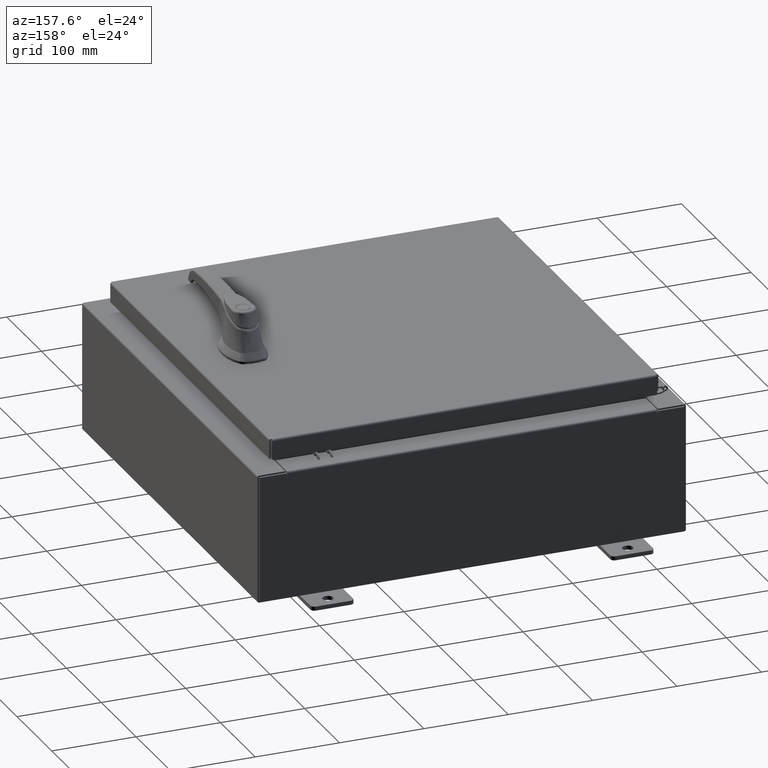
[diagram: clean part render]
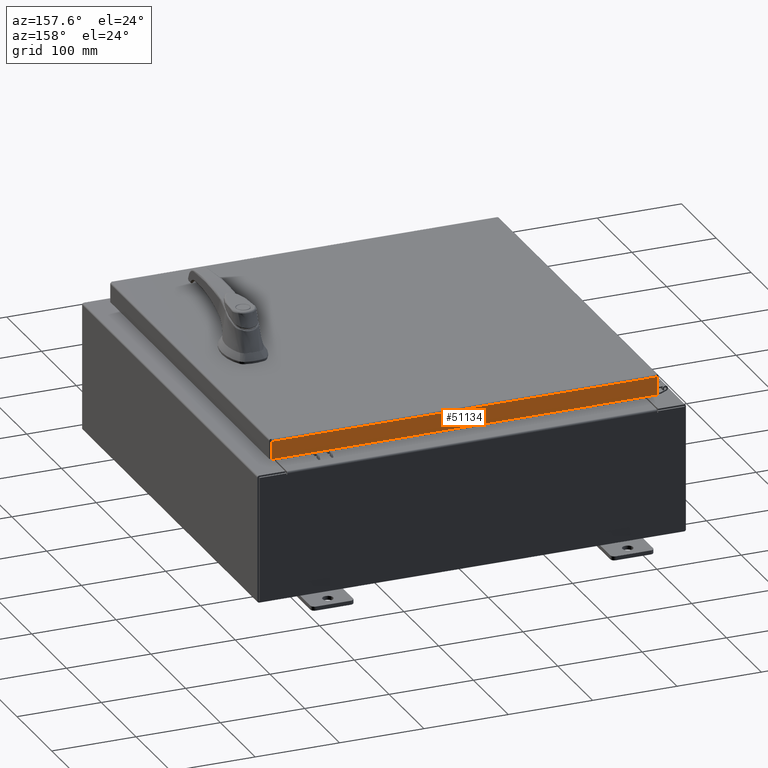
[diagram: same view with one face highlighted and labeled with its STEP entity id]
A machine part, auxiliary view. The second image highlights one B-rep face of the part: STEP entity #51134.
In plain terms, the highlighted planar face has unit normal (0, -1, -0).
Its self-contained STEP definition (entity closure, byte-faithful):
#7307 = ORIENTED_EDGE ( 'NONE', *, *, #86416, .F. ) ;
#8305 = VECTOR ( 'NONE', #42766, 39.37007874015748100 ) ;
#10061 = LINE ( 'NONE', #52516, #97089 ) ;
#11348 = ORIENTED_EDGE ( 'NONE', *, *, #18435, .F. ) ;
#13057 = FACE_OUTER_BOUND ( 'NONE', #39381, .T. ) ;
#14764 = VERTEX_POINT ( 'NONE', #77142 ) ;
#15631 = DIRECTION ( 'NONE',  ( 0.0000000000000000000, 3.798629886902789300E-015, -1.000000000000000000 ) ) ;
#17215 = VERTEX_POINT ( 'NONE', #45941 ) ;
#17794 = PLANE ( 'NONE',  #28318 ) ;
#18435 = EDGE_CURVE ( 'NONE', #17215, #36582, #20271, .T. ) ;
#20271 = LINE ( 'NONE', #22739, #40035 ) ;
#22739 = CARTESIAN_POINT ( 'NONE',  ( -8.989157864376267100, 9.093999999999999400, -0.07469999999999972500 ) ) ;
#28318 = AXIS2_PLACEMENT_3D ( 'NONE', #85642, #35092, #94143 ) ;
#35092 = DIRECTION ( 'NONE',  ( 4.858276889142553200E-031, -1.000000000000000000, -3.798629886902789300E-015 ) ) ;
#35907 = DIRECTION ( 'NONE',  ( -1.000000000000000000, -4.858276889142553200E-031, -1.863630459400616000E-045 ) ) ;
#36582 = VERTEX_POINT ( 'NONE', #80022 ) ;
#39381 = EDGE_LOOP ( 'NONE', ( #53537, #108330, #7307, #11348 ) ) ;
#40035 = VECTOR ( 'NONE', #64759, 39.37007874015748100 ) ;
#42766 = DIRECTION ( 'NONE',  ( 1.000000000000000000, -8.758115402030108600E-047, 1.278955053213606700E-016 ) ) ;
#45941 = CARTESIAN_POINT ( 'NONE',  ( -8.989157864376267100, 9.093999999999999400, -0.08769999999999997200 ) ) ;
#51134 = ADVANCED_FACE ( 'NONE', ( #13057 ), #17794, .F. ) ;
#51528 = LINE ( 'NONE', #66113, #54153 ) ;
#52516 = CARTESIAN_POINT ( 'NONE',  ( -9.077999999999999400, 9.093999999999999400, -0.08769999999999997200 ) ) ;
#53537 = ORIENTED_EDGE ( 'NONE', *, *, #77889, .F. ) ;
#54153 = VECTOR ( 'NONE', #15631, 39.37007874015748100 ) ;
#55287 = VERTEX_POINT ( 'NONE', #79536 ) ;
#59345 = EDGE_CURVE ( 'NONE', #14764, #55287, #51528, .T. ) ;
#64759 = DIRECTION ( 'NONE',  ( -0.0000000000000000000, 3.798629886902789300E-015, -1.000000000000000000 ) ) ;
#66113 = CARTESIAN_POINT ( 'NONE',  ( 8.989157864376267100, 9.093999999999999400, 3.480555384750554900E-014 ) ) ;
#75564 = LINE ( 'NONE', #84823, #8305 ) ;
#77142 = CARTESIAN_POINT ( 'NONE',  ( 8.989157864376267100, 9.093999999999999400, -0.08769999999999997200 ) ) ;
#77889 = EDGE_CURVE ( 'NONE', #14764, #17215, #10061, .T. ) ;
#79536 = CARTESIAN_POINT ( 'NONE',  ( 8.989157864376267100, 9.094000000000003000, -0.9376999999999997600 ) ) ;
#80022 = CARTESIAN_POINT ( 'NONE',  ( -8.989157864376267100, 9.094000000000003000, -0.9377000000000020900 ) ) ;
#84823 = CARTESIAN_POINT ( 'NONE',  ( -9.077999999999999400, 9.094000000000003000, -0.9377000000000020900 ) ) ;
#85642 = CARTESIAN_POINT ( 'NONE',  ( -4.418117002986237500E-030, 9.093999999999999400, 3.480555384750554900E-014 ) ) ;
#86416 = EDGE_CURVE ( 'NONE', #36582, #55287, #75564, .T. ) ;
#94143 = DIRECTION ( 'NONE',  ( 0.0000000000000000000, 3.798629886902789300E-015, -1.000000000000000000 ) ) ;
#97089 = VECTOR ( 'NONE', #35907, 39.37007874015748100 ) ;
#108330 = ORIENTED_EDGE ( 'NONE', *, *, #59345, .T. ) ;